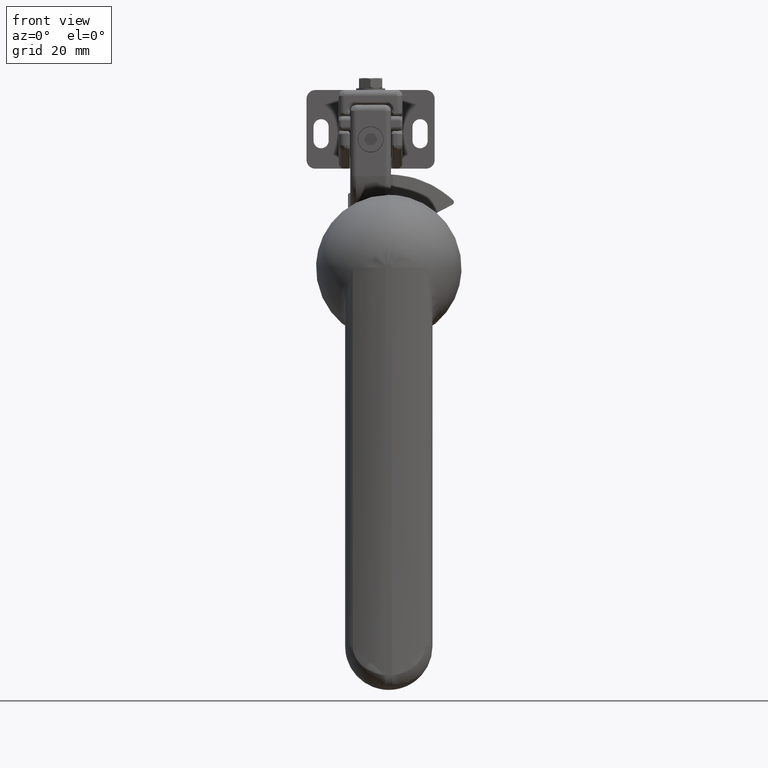
[diagram: clean part render]
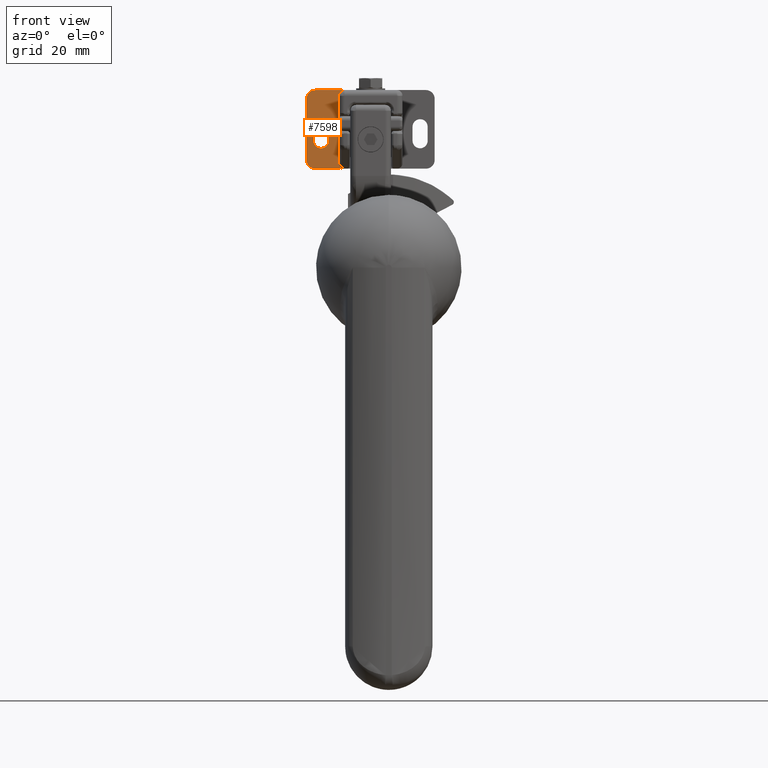
[diagram: same view with one face highlighted and labeled with its STEP entity id]
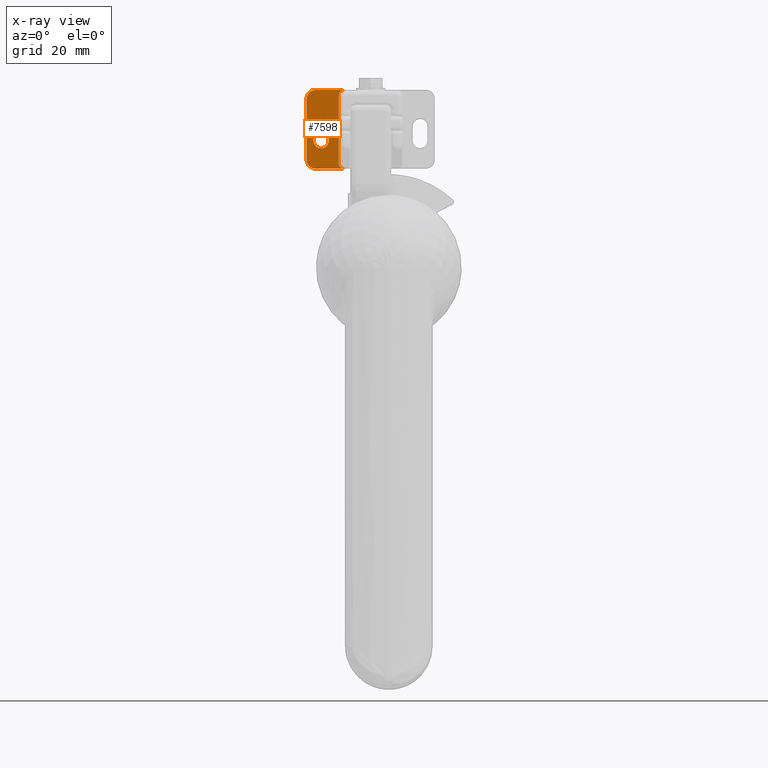
[diagram: x-ray of the same camera — body ghosted, the highlighted face saturated]
A machine part, front view. The second image highlights one B-rep face of the part: STEP entity #7598.
The next image is the same camera in x-ray: the body ghosted, the highlighted face saturated — about 0% of this face is hidden behind the body in this view.
In plain terms, the highlighted face is a freeform B-spline surface patch.
Its self-contained STEP definition (entity closure, byte-faithful):
#7295=CARTESIAN_POINT('',(-25.849999999987752,31.999999999956700,48.399999999634034));
#7296=VERTEX_POINT('',#7295);
#7302=CARTESIAN_POINT('',(-25.849999999987752,31.999999999959140,43.599999999634207));
#7303=VERTEX_POINT('',#7302);
#7304=CARTESIAN_POINT('',(-25.849999999987752,31.999999999956700,48.399999999634034));
#7305=CARTESIAN_POINT('',(-25.849999999987752,31.999999999959140,43.599999999634207));
#7306=QUASI_UNIFORM_CURVE('',1,(#7304,#7305),.UNSPECIFIED.,.F.,.U.);
#7307=EDGE_CURVE('',#7296,#7303,#7306,.T.);
#7354=CARTESIAN_POINT('',(-20.649999999987660,31.999999999959140,48.399999999634112));
#7355=VERTEX_POINT('',#7354);
#7361=CARTESIAN_POINT('',(-20.649999999987660,31.999999999959140,48.399999999634112));
#7362=CARTESIAN_POINT('',(-20.649664010553259,31.999999999959130,48.740383118805738));
#7363=CARTESIAN_POINT('',(-20.751704170794930,31.999999999959151,49.250573954800117));
#7364=CARTESIAN_POINT('',(-21.104436637331990,31.999999999959130,49.910364371151509));
#7365=CARTESIAN_POINT('',(-21.502569488759381,31.999999999959151,50.360631883090129));
#7366=CARTESIAN_POINT('',(-22.084966393881491,31.999999999959151,50.760271245373168));
#7367=CARTESIAN_POINT('',(-22.736764512649749,31.999999999959069,50.984498520541202));
#7368=CARTESIAN_POINT('',(-23.507431480690830,31.999999999959250,51.022331970296413));
#7369=CARTESIAN_POINT('',(-24.199077812898949,31.999999999958970,50.858169710118297));
#7370=CARTESIAN_POINT('',(-24.758477517660580,31.999999999959311,50.541072613378482));
#7371=CARTESIAN_POINT('',(-25.190337647110770,31.999999999958970,50.159232897099173));
#7372=CARTESIAN_POINT('',(-25.496743616408100,31.999999999959460,49.746098757942178));
#7373=CARTESIAN_POINT('',(-25.772386378394032,31.999999999958000,49.144345133940639));
#7374=CARTESIAN_POINT('',(-25.850197103030059,31.999999999961190,48.697823119327353));
#7375=CARTESIAN_POINT('',(-25.849999999987752,31.999999999956700,48.399999999634034));
#7376=B_SPLINE_CURVE_WITH_KNOTS('',3,(#7361,#7362,#7363,#7364,#7365,#7366,#7367,#7368,#7369,#7370,#7371,#7372,#7373,#7374,#7375),.UNSPECIFIED.,.F.,.U.,(4,1,1,1,1,1,1,1,1,1,1,1,4),(0.000000945838989,1.020972867575996,1.531564072814089,2.233552502974899,2.807889471984415,3.637580355125735,4.275510563806868,5.105204089335428,5.743361015214191,6.190081380589946,6.828238797982334,7.274962614992197,8.168345871719028),.UNSPECIFIED.);
#7377=EDGE_CURVE('',#7355,#7296,#7376,.T.);
#7395=CARTESIAN_POINT('',(-20.649999999987660,31.999999999959140,43.599999999634207));
#7396=VERTEX_POINT('',#7395);
#7402=CARTESIAN_POINT('',(-20.649999999987660,31.999999999959140,43.599999999634207));
#7403=CARTESIAN_POINT('',(-20.649999999987660,31.999999999959140,48.399999999634112));
#7404=QUASI_UNIFORM_CURVE('',1,(#7402,#7403),.UNSPECIFIED.,.F.,.U.);
#7405=EDGE_CURVE('',#7396,#7355,#7404,.T.);
#7448=CARTESIAN_POINT('',(-25.849999999987752,31.999999999959140,43.599999999634207));
#7449=CARTESIAN_POINT('',(-25.850388773273821,31.999999999959151,43.259613133682642));
#7450=CARTESIAN_POINT('',(-25.748254931620728,31.999999999959140,42.749427131537722));
#7451=CARTESIAN_POINT('',(-25.375466720095030,31.999999999959140,42.051882851204553));
#7452=CARTESIAN_POINT('',(-24.920954488320369,31.999999999959140,41.562613704525887));
#7453=CARTESIAN_POINT('',(-24.314209377954018,31.999999999959119,41.199034733834118));
#7454=CARTESIAN_POINT('',(-23.657939954880540,31.999999999959151,40.999956095130628));
#7455=CARTESIAN_POINT('',(-22.884057697160650,31.999999999959119,40.980794118441132));
#7456=CARTESIAN_POINT('',(-22.140463261952220,31.999999999959201,41.206419106645583));
#7457=CARTESIAN_POINT('',(-21.534611816550850,31.999999999959041,41.611401772908721));
#7458=CARTESIAN_POINT('',(-21.059549244699561,31.999999999959240,42.135421736445608));
#7459=CARTESIAN_POINT('',(-20.728834335529950,31.999999999958980,42.813006860537691));
#7460=CARTESIAN_POINT('',(-20.649920618992830,31.999999999959272,43.344776354908227));
#7461=CARTESIAN_POINT('',(-20.649999999987660,31.999999999959140,43.599999999634207));
#7462=B_SPLINE_CURVE_WITH_KNOTS('',3,(#7448,#7449,#7450,#7451,#7452,#7453,#7454,#7455,#7456,#7457,#7458,#7459,#7460,#7461),.UNSPECIFIED.,.F.,.U.,(4,1,1,1,1,1,1,1,1,1,1,4),(0.000000945827567,1.020972867565799,1.531564072804396,2.361172550458555,2.999346716220150,3.637580355118343,4.403208128608519,5.296648592442836,5.934817099907392,6.572985163981630,7.402653808995042,8.168345871718840),.UNSPECIFIED.);
#7463=EDGE_CURVE('',#7303,#7396,#7462,.T.);
#7474=CARTESIAN_POINT('',(-28.249999999969301,31.999999999959101,57.999999999670159));
#7475=VERTEX_POINT('',#7474);
#7476=CARTESIAN_POINT('',(-28.249999999969301,31.999999999959101,36.999999999670138));
#7477=VERTEX_POINT('',#7476);
#7478=CARTESIAN_POINT('',(-28.249999999969301,31.999999999959101,57.999999999670159));
#7479=CARTESIAN_POINT('',(-28.249999999969301,31.999999999959101,36.999999999670138));
#7480=QUASI_UNIFORM_CURVE('',1,(#7478,#7479),.UNSPECIFIED.,.F.,.U.);
#7481=EDGE_CURVE('',#7475,#7477,#7480,.T.);
#7505=CARTESIAN_POINT('',(-14.600650025233000,31.999999999945452,32.651350052001440));
#7506=CARTESIAN_POINT('',(-28.899350323456758,31.999999999959751,32.651350052001440));
#7507=CARTESIAN_POINT('',(-14.600650025233000,31.999999999945452,62.348650671535403));
#7508=CARTESIAN_POINT('',(-28.899350323456758,31.999999999959751,62.348650671535403));
#7509=B_SPLINE_SURFACE_WITH_KNOTS('',1,1,((#7505,#7507),(#7506,#7508)),.UNSPECIFIED.,.F.,.F.,.U.,(2,2),(2,2),(0.0,14.298700298223761),(0.0,29.697300619533959),.UNSPECIFIED.);
#7510=CARTESIAN_POINT('',(-25.249999999969301,31.999999999956099,60.999999999670202));
#7511=VERTEX_POINT('',#7510);
#7512=CARTESIAN_POINT('',(-15.250000000033280,31.999999999946098,60.999999999670202));
#7513=VERTEX_POINT('',#7512);
#7514=CARTESIAN_POINT('',(-25.249999999969301,31.999999999956099,60.999999999670202));
#7515=CARTESIAN_POINT('',(-15.250000000033280,31.999999999946098,60.999999999670202));
#7516=QUASI_UNIFORM_CURVE('',1,(#7514,#7515),.UNSPECIFIED.,.F.,.U.);
#7517=EDGE_CURVE('',#7511,#7513,#7516,.T.);
#7518=ORIENTED_EDGE('',*,*,#7517,.F.);
#7519=CARTESIAN_POINT('',(-25.249999999969301,31.999999999956099,60.999999999670202));
#7520=CARTESIAN_POINT('',(-28.249999999969297,31.999999999959098,60.999999999670202));
#7521=CARTESIAN_POINT('',(-28.249999999969301,31.999999999959101,57.999999999670202));
#7529=(BOUNDED_CURVE()B_SPLINE_CURVE(2,(#7519,#7520,#7521),.UNSPECIFIED.,.F.,.U.)CURVE()GEOMETRIC_REPRESENTATION_ITEM()QUASI_UNIFORM_CURVE()RATIONAL_B_SPLINE_CURVE((1.0,0.707106781186548,1.0))REPRESENTATION_ITEM(''));
#7530=EDGE_CURVE('',#7511,#7475,#7529,.T.);
#7531=ORIENTED_EDGE('',*,*,#7530,.T.);
#7532=ORIENTED_EDGE('',*,*,#7481,.T.);
#7533=CARTESIAN_POINT('',(-25.249999999969301,31.999999999956099,33.999999999670202));
#7534=VERTEX_POINT('',#7533);
#7535=CARTESIAN_POINT('',(-28.249999999969301,31.999999999959101,36.999999999670138));
#7536=CARTESIAN_POINT('',(-28.249999999969297,31.999999999959098,33.999999999670138));
#7537=CARTESIAN_POINT('',(-25.249999999969301,31.999999999956099,33.999999999670138));
#7545=(BOUNDED_CURVE()B_SPLINE_CURVE(2,(#7535,#7536,#7537),.UNSPECIFIED.,.F.,.U.)CURVE()GEOMETRIC_REPRESENTATION_ITEM()QUASI_UNIFORM_CURVE()RATIONAL_B_SPLINE_CURVE((1.0,0.707106781186548,1.0))REPRESENTATION_ITEM(''));
#7546=EDGE_CURVE('',#7477,#7534,#7545,.T.);
#7547=ORIENTED_EDGE('',*,*,#7546,.T.);
#7548=CARTESIAN_POINT('',(-15.250000000033280,31.999999999946098,33.999999999670202));
#7549=VERTEX_POINT('',#7548);
#7550=CARTESIAN_POINT('',(-25.249999999969301,31.999999999956099,33.999999999670202));
#7551=CARTESIAN_POINT('',(-15.250000000033280,31.999999999946098,33.999999999670202));
#7552=QUASI_UNIFORM_CURVE('',1,(#7550,#7551),.UNSPECIFIED.,.F.,.U.);
#7553=EDGE_CURVE('',#7534,#7549,#7552,.T.);
#7554=ORIENTED_EDGE('',*,*,#7553,.T.);
#7555=CARTESIAN_POINT('',(-17.250000000033278,31.999999999948201,35.999999999670138));
#7556=VERTEX_POINT('',#7555);
#7557=CARTESIAN_POINT('',(-15.250000000033280,31.999999999946098,33.999999999670202));
#7558=CARTESIAN_POINT('',(-17.250000000033282,31.999999999948109,33.999999999670138));
#7559=CARTESIAN_POINT('',(-17.250000000033278,31.999999999948098,35.999999999670138));
#7567=(BOUNDED_CURVE()B_SPLINE_CURVE(2,(#7557,#7558,#7559),.UNSPECIFIED.,.F.,.U.)CURVE()GEOMETRIC_REPRESENTATION_ITEM()QUASI_UNIFORM_CURVE()RATIONAL_B_SPLINE_CURVE((1.0,0.707106781186548,1.0))REPRESENTATION_ITEM(''));
#7568=EDGE_CURVE('',#7549,#7556,#7567,.T.);
#7569=ORIENTED_EDGE('',*,*,#7568,.T.);
#7570=CARTESIAN_POINT('',(-17.250000000033278,31.999999999948201,58.999999999670159));
#7571=VERTEX_POINT('',#7570);
#7572=CARTESIAN_POINT('',(-17.250000000033278,31.999999999948201,58.999999999670159));
#7573=CARTESIAN_POINT('',(-17.250000000033278,31.999999999948201,35.999999999670138));
#7574=QUASI_UNIFORM_CURVE('',1,(#7572,#7573),.UNSPECIFIED.,.F.,.U.);
#7575=EDGE_CURVE('',#7571,#7556,#7574,.T.);
#7576=ORIENTED_EDGE('',*,*,#7575,.F.);
#7577=CARTESIAN_POINT('',(-17.250000000033278,31.999999999948201,58.999999999670159));
#7578=CARTESIAN_POINT('',(-17.250000000033282,31.999999999948109,60.999999999670202));
#7579=CARTESIAN_POINT('',(-15.250000000033280,31.999999999946098,60.999999999670202));
#7587=(BOUNDED_CURVE()B_SPLINE_CURVE(2,(#7577,#7578,#7579),.UNSPECIFIED.,.F.,.U.)CURVE()GEOMETRIC_REPRESENTATION_ITEM()QUASI_UNIFORM_CURVE()RATIONAL_B_SPLINE_CURVE((1.0,0.707106781186548,1.0))REPRESENTATION_ITEM(''));
#7588=EDGE_CURVE('',#7571,#7513,#7587,.T.);
#7589=ORIENTED_EDGE('',*,*,#7588,.T.);
#7590=EDGE_LOOP('',(#7518,#7531,#7532,#7547,#7554,#7569,#7576,#7589));
#7591=FACE_OUTER_BOUND('',#7590,.T.);
#7592=ORIENTED_EDGE('',*,*,#7463,.F.);
#7593=ORIENTED_EDGE('',*,*,#7307,.F.);
#7594=ORIENTED_EDGE('',*,*,#7377,.F.);
#7595=ORIENTED_EDGE('',*,*,#7405,.F.);
#7596=EDGE_LOOP('',(#7592,#7593,#7594,#7595));
#7597=FACE_BOUND('',#7596,.T.);
#7598=ADVANCED_FACE('',(#7591,#7597),#7509,.F.);